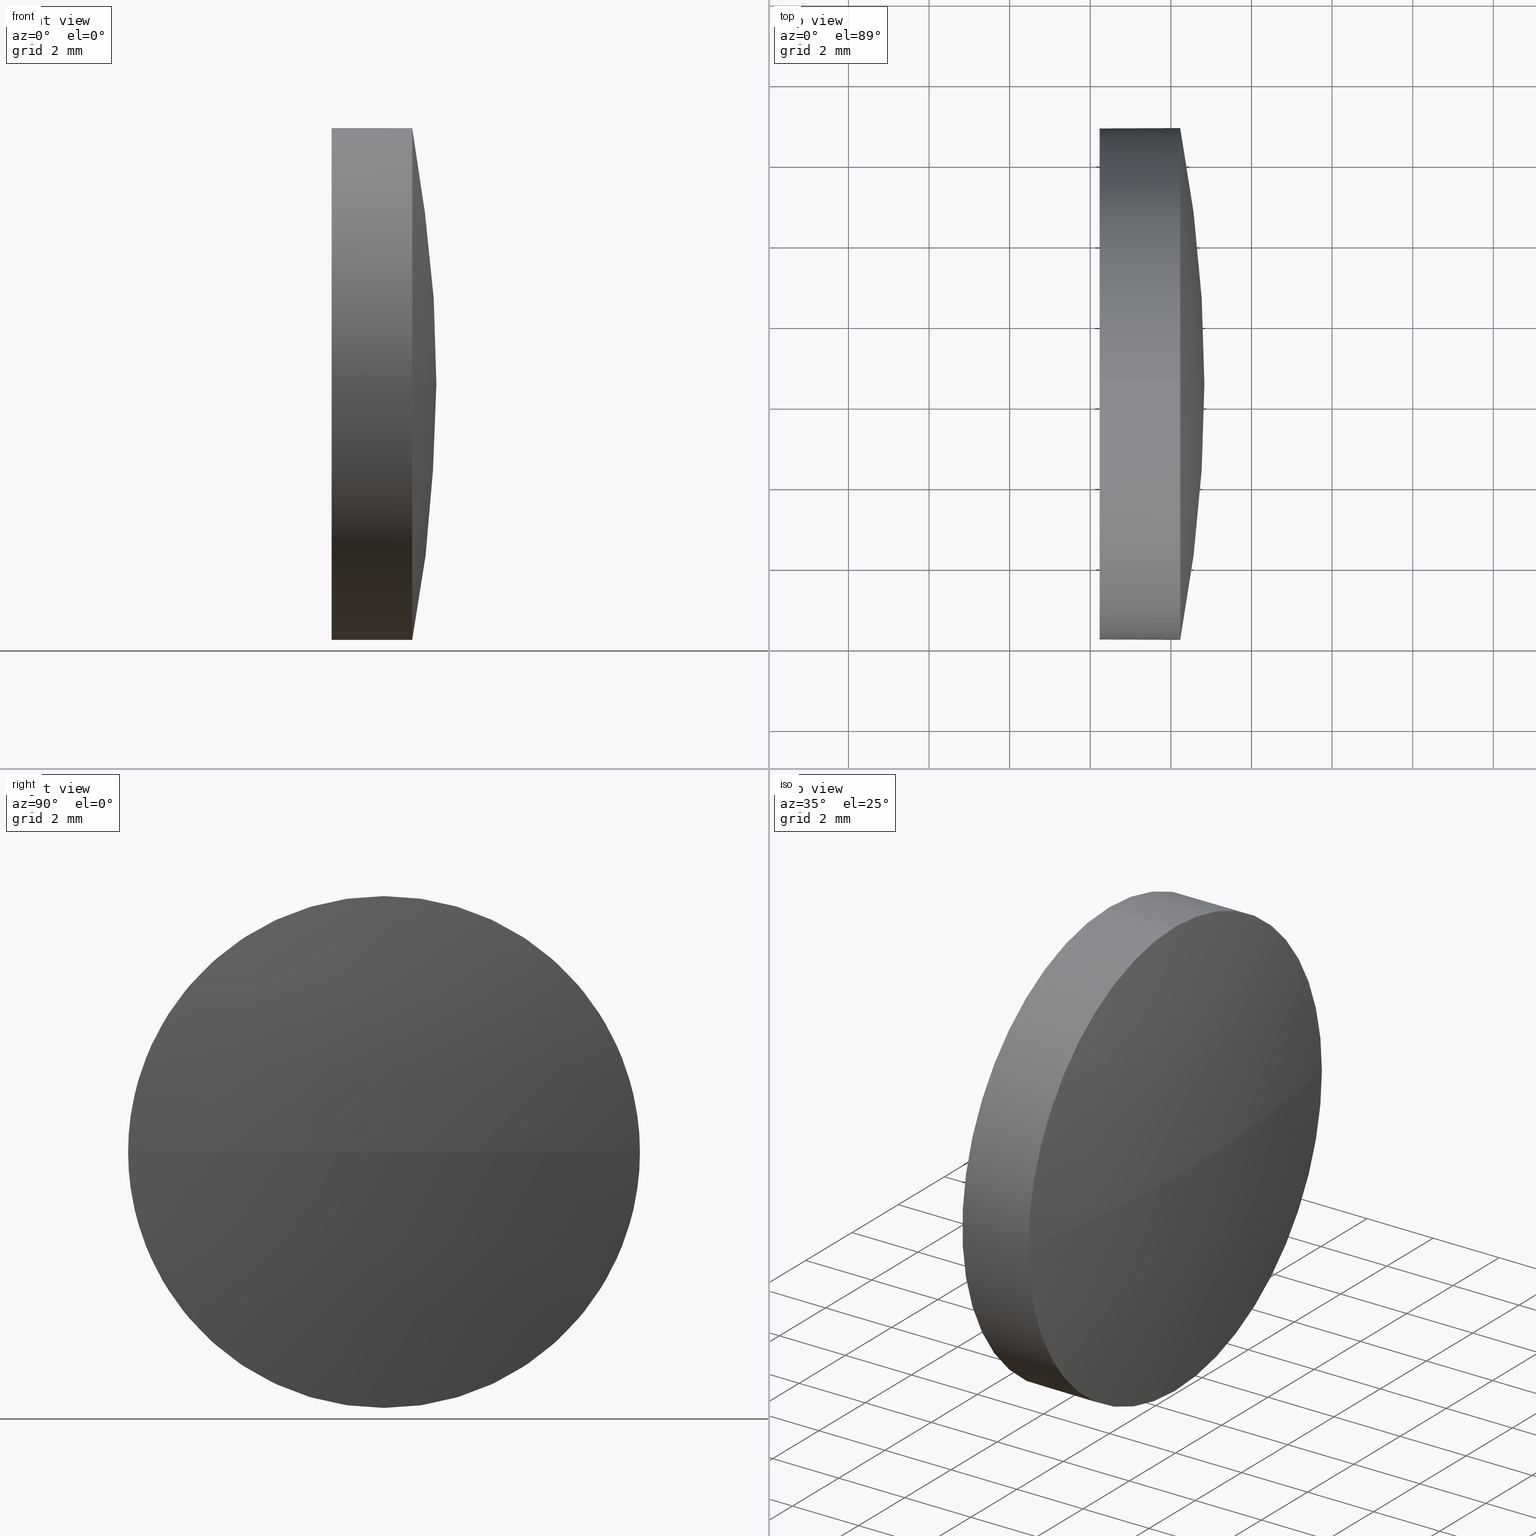
[diagram: canonical four-view strip — front | top / right | iso, engineering-drawing reading convention]
A machine part, canonical four-view strip (front | top / right | iso — engineering-drawing reading convention). The complete STEP part file that produces these views, byte-faithful:
ISO-10303-21;
HEADER;
FILE_DESCRIPTION (( 'STEP AP214' ),
    '1' );
FILE_NAME ('100488.STEP',
    '2019-06-11T08:46:52',
    ( '' ),
    ( '' ),
    'SwSTEP 2.0',
    'SolidWorks 2016',
    '' );
FILE_SCHEMA (( 'AUTOMOTIVE_DESIGN' ));
ENDSEC;

DATA;
#1 = DIRECTION ( 'NONE',  ( 1.000000000000000000, 0.0000000000000000000, 0.0000000000000000000 ) ) ;
#2 = DIRECTION ( 'NONE',  ( -1.000000000000000000, -0.0000000000000000000, -0.0000000000000000000 ) ) ;
#3 = VERTEX_POINT ( 'NONE', #39 ) ;
#4 = DIRECTION ( 'NONE',  ( 0.0000000000000000000, 0.0000000000000000000, 1.000000000000000000 ) ) ;
#5 = ORIENTED_EDGE ( 'NONE', *, *, #134, .T. ) ;
#6 = PRODUCT_DEFINITION_CONTEXT ( 'detailed design', #163, 'design' ) ;
#7 = ORIENTED_EDGE ( 'NONE', *, *, #71, .T. ) ;
#8 = COLOUR_RGB ( '',1.000000000000000000, 1.000000000000000000, 1.000000000000000000 ) ;
#9 = AXIS2_PLACEMENT_3D ( 'NONE', #16, #159, #20 ) ;
#10 = ORIENTED_EDGE ( 'NONE', *, *, #110, .T. ) ;
#11 = AXIS2_PLACEMENT_3D ( 'NONE', #63, #139, #4 ) ;
#12 = VERTEX_POINT ( 'NONE', #178 ) ;
#13 = SURFACE_STYLE_FILL_AREA ( #138 ) ;
#14 = DIRECTION ( 'NONE',  ( -1.000000000000000000, -0.0000000000000000000, -0.0000000000000000000 ) ) ;
#15 = VECTOR ( 'NONE', #160, 1000.000000000000000 ) ;
#16 = CARTESIAN_POINT ( 'NONE',  ( 336.9297911166494800, 178.5090512951935900, 0.0000000000000000000 ) ) ;
#17 = CARTESIAN_POINT ( 'NONE',  ( 365.9713433041283100, 178.5090512951935900, 6.349999999999994300 ) ) ;
#18 = FILL_AREA_STYLE_COLOUR ( '', #56 ) ;
#19 =( NAMED_UNIT ( * ) PLANE_ANGLE_UNIT ( ) SI_UNIT ( $, .RADIAN. ) );
#20 = DIRECTION ( 'NONE',  ( 0.0000000000000000000, 1.000000000000000000, 0.0000000000000000000 ) ) ;
#21 = STYLED_ITEM ( 'NONE', ( #135 ), #69 ) ;
#22 = CYLINDRICAL_SURFACE ( 'NONE', #24, 6.349999999999994300 ) ;
#23 = ADVANCED_FACE ( 'NONE', ( #53 ), #22, .T. ) ;
#24 = AXIS2_PLACEMENT_3D ( 'NONE', #123, #78, #43 ) ;
#25 = SURFACE_STYLE_FILL_AREA ( #125 ) ;
#26 = AXIS2_PLACEMENT_3D ( 'NONE', #46, #47, #166 ) ;
#27 = ADVANCED_BREP_SHAPE_REPRESENTATION ( '100488', ( #69, #100 ), #115 ) ;
#28 = SURFACE_SIDE_STYLE ('',( #13 ) ) ;
#29 = APPLICATION_PROTOCOL_DEFINITION ( 'draft international standard', 'automotive_design', 1998, #118 ) ;
#30 = DIRECTION ( 'NONE',  ( 0.0000000000000000000, 0.0000000000000000000, 1.000000000000000000 ) ) ;
#31 = AXIS2_PLACEMENT_3D ( 'NONE', #177, #186, #106 ) ;
#32 = SHAPE_DEFINITION_REPRESENTATION ( #108, #27 ) ;
#33 = ADVANCED_FACE ( 'NONE', ( #175 ), #152, .F. ) ;
#34 = PRODUCT_DEFINITION_FORMATION_WITH_SPECIFIED_SOURCE ( '�κ�', '', #89, .NOT_KNOWN. ) ;
#35 = VERTEX_POINT ( 'NONE', #181 ) ;
#36 = PRESENTATION_LAYER_ASSIGNMENT (  '', '', ( #21 ) ) ;
#37 = MECHANICAL_DESIGN_GEOMETRIC_PRESENTATION_REPRESENTATION (  '', ( #21 ), #113 ) ;
#38 = ORIENTED_EDGE ( 'NONE', *, *, #101, .F. ) ;
#39 = CARTESIAN_POINT ( 'NONE',  ( 370.2318744499828000, 178.5090512951935900, -6.349999999999994300 ) ) ;
#40 =( LENGTH_UNIT ( ) NAMED_UNIT ( * ) SI_UNIT ( .MILLI., .METRE. ) );
#41 = SURFACE_STYLE_USAGE ( .BOTH. , #28 ) ;
#42 = FILL_AREA_STYLE_COLOUR ( '', #8 ) ;
#43 = DIRECTION ( 'NONE',  ( 0.0000000000000000000, 0.0000000000000000000, 1.000000000000000000 ) ) ;
#44 = CARTESIAN_POINT ( 'NONE',  ( 336.9297911166494800, 178.5090512951935900, 0.0000000000000000000 ) ) ;
#45 = CARTESIAN_POINT ( 'NONE',  ( 368.2318744499828000, 178.5090512951935900, 0.0000000000000000000 ) ) ;
#46 = CARTESIAN_POINT ( 'NONE',  ( 336.9297911166494800, 178.5090512951935900, 0.0000000000000000000 ) ) ;
#47 = DIRECTION ( 'NONE',  ( 0.0000000000000000000, 1.224646799147353200E-016, -1.000000000000000000 ) ) ;
#48 = ORIENTED_EDGE ( 'NONE', *, *, #101, .T. ) ;
#49 = CIRCLE ( 'NONE', #127, 6.349999999999994300 ) ;
#50 = PRESENTATION_LAYER_ASSIGNMENT (  '', '', ( #133 ) ) ;
#51 = FACE_OUTER_BOUND ( 'NONE', #142, .T. ) ;
#52 = ORIENTED_EDGE ( 'NONE', *, *, #62, .F. ) ;
#53 = FACE_OUTER_BOUND ( 'NONE', #116, .T. ) ;
#54 = CIRCLE ( 'NONE', #26, 33.90208333333328000 ) ;
#55 = AXIS2_PLACEMENT_3D ( 'NONE', #140, #92, #143 ) ;
#56 = COLOUR_RGB ( '',1.000000000000000000, 1.000000000000000000, 1.000000000000000000 ) ;
#57 = CARTESIAN_POINT ( 'NONE',  ( 370.2318744499828000, 178.5090512951935900, 0.0000000000000000000 ) ) ;
#58 = CARTESIAN_POINT ( 'NONE',  ( 370.2318744499828000, 184.8590512951935500, 0.0000000000000000000 ) ) ;
#59 =( NAMED_UNIT ( * ) SI_UNIT ( $, .STERADIAN. ) SOLID_ANGLE_UNIT ( ) );
#60 = PRODUCT_DEFINITION ( 'δ֪', '', #34, #6 ) ;
#61 = DIRECTION ( 'NONE',  ( 0.0000000000000000000, 0.0000000000000000000, 1.000000000000000000 ) ) ;
#62 = EDGE_CURVE ( 'NONE', #112, #156, #148, .T. ) ;
#63 = CARTESIAN_POINT ( 'NONE',  ( 370.2318744499828000, 178.5090512951935900, 0.0000000000000000000 ) ) ;
#64 = DIRECTION ( 'NONE',  ( -0.0000000000000000000, 0.0000000000000000000, 1.000000000000000000 ) ) ;
#65 = VERTEX_POINT ( 'NONE', #121 ) ;
#66 = SURFACE_STYLE_USAGE ( .BOTH. , #79 ) ;
#67 = APPLICATION_PROTOCOL_DEFINITION ( 'draft international standard', 'automotive_design', 1998, #163 ) ;
#68 =( LENGTH_UNIT ( ) NAMED_UNIT ( * ) SI_UNIT ( .MILLI., .METRE. ) );
#69 = MANIFOLD_SOLID_BREP ( '��ת1', #80 ) ;
#70 = PRESENTATION_STYLE_ASSIGNMENT (( #41 ) ) ;
#71 = EDGE_CURVE ( 'NONE', #65, #172, #132, .T. ) ;
#72 = AXIS2_PLACEMENT_3D ( 'NONE', #111, #14, #117 ) ;
#73 =( NAMED_UNIT ( * ) SI_UNIT ( $, .STERADIAN. ) SOLID_ANGLE_UNIT ( ) );
#74 = PRODUCT_CONTEXT ( 'NONE', #118, 'mechanical' ) ;
#75 =( LENGTH_UNIT ( ) NAMED_UNIT ( * ) SI_UNIT ( .MILLI., .METRE. ) );
#76 = ORIENTED_EDGE ( 'NONE', *, *, #149, .F. ) ;
#77 = DIRECTION ( 'NONE',  ( -1.000000000000000000, -0.0000000000000000000, -0.0000000000000000000 ) ) ;
#78 = DIRECTION ( 'NONE',  ( -1.000000000000000000, -0.0000000000000000000, -0.0000000000000000000 ) ) ;
#79 = SURFACE_SIDE_STYLE ('',( #25 ) ) ;
#80 = CLOSED_SHELL ( 'NONE', ( #171, #170, #155, #23, #33 ) ) ;
#81 = AXIS2_PLACEMENT_3D ( 'NONE', #45, #179, #109 ) ;
#82 = EDGE_LOOP ( 'NONE', ( #99, #10, #52, #98 ) ) ;
#83 = EDGE_CURVE ( 'NONE', #12, #35, #54, .T. ) ;
#84 = ORIENTED_EDGE ( 'NONE', *, *, #83, .T. ) ;
#85 = AXIS2_PLACEMENT_3D ( 'NONE', #153, #97, #154 ) ;
#86 = CIRCLE ( 'NONE', #81, 6.349999999999994300 ) ;
#87 = ORIENTED_EDGE ( 'NONE', *, *, #62, .T. ) ;
#88 = ORIENTED_EDGE ( 'NONE', *, *, #110, .F. ) ;
#89 = PRODUCT ( '100488', '100488', '', ( #74 ) ) ;
#90 = ORIENTED_EDGE ( 'NONE', *, *, #134, .F. ) ;
#91 = CARTESIAN_POINT ( 'NONE',  ( 365.9713433041283100, 178.5090512951935900, -6.349999999999994300 ) ) ;
#92 = DIRECTION ( 'NONE',  ( -1.000000000000000000, -0.0000000000000000000, -0.0000000000000000000 ) ) ;
#93 = CARTESIAN_POINT ( 'NONE',  ( 0.0000000000000000000, 0.0000000000000000000, 0.0000000000000000000 ) ) ;
#94 = DIRECTION ( 'NONE',  ( 1.000000000000000000, 0.0000000000000000000, 0.0000000000000000000 ) ) ;
#95 = EDGE_CURVE ( 'NONE', #35, #112, #136, .T. ) ;
#96 = ORIENTED_EDGE ( 'NONE', *, *, #95, .T. ) ;
#97 = DIRECTION ( 'NONE',  ( -1.000000000000000000, -0.0000000000000000000, -0.0000000000000000000 ) ) ;
#98 = ORIENTED_EDGE ( 'NONE', *, *, #95, .F. ) ;
#99 = ORIENTED_EDGE ( 'NONE', *, *, #83, .F. ) ;
#100 = AXIS2_PLACEMENT_3D ( 'NONE', #93, #151, #94 ) ;
#101 = EDGE_CURVE ( 'NONE', #3, #35, #119, .T. ) ;
#102 = FACE_OUTER_BOUND ( 'NONE', #126, .T. ) ;
#103 = EDGE_CURVE ( 'NONE', #172, #65, #86, .T. ) ;
#104 = ORIENTED_EDGE ( 'NONE', *, *, #103, .T. ) ;
#105 =( GEOMETRIC_REPRESENTATION_CONTEXT ( 3 ) GLOBAL_UNCERTAINTY_ASSIGNED_CONTEXT ( ( #184 ) ) GLOBAL_UNIT_ASSIGNED_CONTEXT ( ( #75, #150, #59 ) ) REPRESENTATION_CONTEXT ( 'NONE', 'WORKASPACE' ) );
#106 = DIRECTION ( 'NONE',  ( 0.0000000000000000000, 1.000000000000000000, 0.0000000000000000000 ) ) ;
#107 = UNCERTAINTY_MEASURE_WITH_UNIT (LENGTH_MEASURE( 1.000000000000000100E-005 ), #40, 'distance_accuracy_value', 'NONE');
#108 = PRODUCT_DEFINITION_SHAPE ( 'NONE', 'NONE',  #60 ) ;
#109 = DIRECTION ( 'NONE',  ( 0.0000000000000000000, 0.0000000000000000000, 1.000000000000000000 ) ) ;
#110 = EDGE_CURVE ( 'NONE', #12, #156, #169, .T. ) ;
#111 = CARTESIAN_POINT ( 'NONE',  ( 365.9713433041283100, 178.5090512951935900, 0.0000000000000000000 ) ) ;
#112 = VERTEX_POINT ( 'NONE', #120 ) ;
#113 =( GEOMETRIC_REPRESENTATION_CONTEXT ( 3 ) GLOBAL_UNCERTAINTY_ASSIGNED_CONTEXT ( ( #145 ) ) GLOBAL_UNIT_ASSIGNED_CONTEXT ( ( #68, #144, #182 ) ) REPRESENTATION_CONTEXT ( 'NONE', 'WORKASPACE' ) );
#114 = AXIS2_PLACEMENT_3D ( 'NONE', #161, #1, #176 ) ;
#115 =( GEOMETRIC_REPRESENTATION_CONTEXT ( 3 ) GLOBAL_UNCERTAINTY_ASSIGNED_CONTEXT ( ( #107 ) ) GLOBAL_UNIT_ASSIGNED_CONTEXT ( ( #40, #19, #73 ) ) REPRESENTATION_CONTEXT ( 'NONE', 'WORKASPACE' ) );
#116 = EDGE_LOOP ( 'NONE', ( #76, #48, #96, #167, #158 ) ) ;
#117 = DIRECTION ( 'NONE',  ( 0.0000000000000000000, 0.0000000000000000000, 1.000000000000000000 ) ) ;
#118 = APPLICATION_CONTEXT ( 'automotive_design' ) ;
#119 = CIRCLE ( 'NONE', #174, 6.349999999999994300 ) ;
#120 = CARTESIAN_POINT ( 'NONE',  ( 370.2318744499828000, 178.5090512951935900, 6.349999999999994300 ) ) ;
#121 = CARTESIAN_POINT ( 'NONE',  ( 368.2318744499828000, 178.5090512951935900, 6.349999999999994300 ) ) ;
#122 = EDGE_CURVE ( 'NONE', #112, #65, #173, .T. ) ;
#123 = CARTESIAN_POINT ( 'NONE',  ( 365.9713433041283100, 178.5090512951935900, 0.0000000000000000000 ) ) ;
#124 = DIRECTION ( 'NONE',  ( -1.000000000000000000, -0.0000000000000000000, -0.0000000000000000000 ) ) ;
#125 = FILL_AREA_STYLE ('',( #18 ) ) ;
#126 = EDGE_LOOP ( 'NONE', ( #88, #84, #38, #90 ) ) ;
#127 = AXIS2_PLACEMENT_3D ( 'NONE', #57, #124, #30 ) ;
#128 = VECTOR ( 'NONE', #2, 1000.000000000000000 ) ;
#129 = SPHERICAL_SURFACE ( 'NONE', #31, 33.90208333333328000 ) ;
#130 = AXIS2_PLACEMENT_3D ( 'NONE', #44, #64, #164 ) ;
#131 = ORIENTED_EDGE ( 'NONE', *, *, #149, .T. ) ;
#132 = CIRCLE ( 'NONE', #85, 6.349999999999994300 ) ;
#133 = STYLED_ITEM ( 'NONE', ( #70 ), #27 ) ;
#134 = EDGE_CURVE ( 'NONE', #156, #3, #49, .T. ) ;
#135 = PRESENTATION_STYLE_ASSIGNMENT (( #66 ) ) ;
#136 = CIRCLE ( 'NONE', #55, 6.349999999999994300 ) ;
#137 = CARTESIAN_POINT ( 'NONE',  ( 368.2318744499828000, 178.5090512951935900, -6.349999999999994300 ) ) ;
#138 = FILL_AREA_STYLE ('',( #42 ) ) ;
#139 = DIRECTION ( 'NONE',  ( -1.000000000000000000, -0.0000000000000000000, -0.0000000000000000000 ) ) ;
#140 = CARTESIAN_POINT ( 'NONE',  ( 370.2318744499828000, 178.5090512951935900, 0.0000000000000000000 ) ) ;
#141 = CYLINDRICAL_SURFACE ( 'NONE', #72, 6.349999999999994300 ) ;
#142 = EDGE_LOOP ( 'NONE', ( #5, #131, #147, #183, #87 ) ) ;
#143 = DIRECTION ( 'NONE',  ( 0.0000000000000000000, 0.0000000000000000000, 1.000000000000000000 ) ) ;
#144 =( NAMED_UNIT ( * ) PLANE_ANGLE_UNIT ( ) SI_UNIT ( $, .RADIAN. ) );
#145 = UNCERTAINTY_MEASURE_WITH_UNIT (LENGTH_MEASURE( 1.000000000000000100E-005 ), #68, 'distance_accuracy_value', 'NONE');
#146 = PRODUCT_RELATED_PRODUCT_CATEGORY ( 'part', '', ( #89 ) ) ;
#147 = ORIENTED_EDGE ( 'NONE', *, *, #71, .F. ) ;
#148 = CIRCLE ( 'NONE', #11, 6.349999999999994300 ) ;
#149 = EDGE_CURVE ( 'NONE', #3, #172, #157, .T. ) ;
#150 =( NAMED_UNIT ( * ) PLANE_ANGLE_UNIT ( ) SI_UNIT ( $, .RADIAN. ) );
#151 = DIRECTION ( 'NONE',  ( 0.0000000000000000000, 0.0000000000000000000, 1.000000000000000000 ) ) ;
#152 = PLANE ( 'NONE',  #114 ) ;
#153 = CARTESIAN_POINT ( 'NONE',  ( 368.2318744499828000, 178.5090512951935900, 0.0000000000000000000 ) ) ;
#154 = DIRECTION ( 'NONE',  ( 0.0000000000000000000, 0.0000000000000000000, 1.000000000000000000 ) ) ;
#155 = ADVANCED_FACE ( 'NONE', ( #168 ), #165, .T. ) ;
#156 = VERTEX_POINT ( 'NONE', #58 ) ;
#157 = LINE ( 'NONE', #91, #128 ) ;
#158 = ORIENTED_EDGE ( 'NONE', *, *, #103, .F. ) ;
#159 = DIRECTION ( 'NONE',  ( -0.0000000000000000000, 0.0000000000000000000, -1.000000000000000000 ) ) ;
#160 = DIRECTION ( 'NONE',  ( -1.000000000000000000, -0.0000000000000000000, -0.0000000000000000000 ) ) ;
#161 = CARTESIAN_POINT ( 'NONE',  ( 368.2318744499828000, 178.5090512951935900, 0.0000000000000000000 ) ) ;
#162 = CARTESIAN_POINT ( 'NONE',  ( 370.2318744499828000, 178.5090512951935900, 0.0000000000000000000 ) ) ;
#163 = APPLICATION_CONTEXT ( 'automotive_design' ) ;
#164 = DIRECTION ( 'NONE',  ( 1.000000000000000000, 0.0000000000000000000, 0.0000000000000000000 ) ) ;
#165 = SPHERICAL_SURFACE ( 'NONE', #9, 33.90208333333328000 ) ;
#166 = DIRECTION ( 'NONE',  ( 0.0000000000000000000, 1.000000000000000000, 1.224646799147353200E-016 ) ) ;
#167 = ORIENTED_EDGE ( 'NONE', *, *, #122, .T. ) ;
#168 = FACE_OUTER_BOUND ( 'NONE', #82, .T. ) ;
#169 = CIRCLE ( 'NONE', #130, 33.90208333333328000 ) ;
#170 = ADVANCED_FACE ( 'NONE', ( #102 ), #129, .T. ) ;
#171 = ADVANCED_FACE ( 'NONE', ( #51 ), #141, .T. ) ;
#172 = VERTEX_POINT ( 'NONE', #137 ) ;
#173 = LINE ( 'NONE', #17, #15 ) ;
#174 = AXIS2_PLACEMENT_3D ( 'NONE', #162, #77, #61 ) ;
#175 = FACE_OUTER_BOUND ( 'NONE', #180, .T. ) ;
#176 = DIRECTION ( 'NONE',  ( 0.0000000000000000000, 0.0000000000000000000, -1.000000000000000000 ) ) ;
#177 = CARTESIAN_POINT ( 'NONE',  ( 336.9297911166494800, 178.5090512951935900, 0.0000000000000000000 ) ) ;
#178 = CARTESIAN_POINT ( 'NONE',  ( 370.8318744499827600, 178.5090512951935900, 0.0000000000000000000 ) ) ;
#179 = DIRECTION ( 'NONE',  ( -1.000000000000000000, -0.0000000000000000000, -0.0000000000000000000 ) ) ;
#180 = EDGE_LOOP ( 'NONE', ( #7, #104 ) ) ;
#181 = CARTESIAN_POINT ( 'NONE',  ( 370.2318744499828000, 172.1590512951936200, -7.776507174585653700E-016 ) ) ;
#182 =( NAMED_UNIT ( * ) SI_UNIT ( $, .STERADIAN. ) SOLID_ANGLE_UNIT ( ) );
#183 = ORIENTED_EDGE ( 'NONE', *, *, #122, .F. ) ;
#184 = UNCERTAINTY_MEASURE_WITH_UNIT (LENGTH_MEASURE( 1.000000000000000100E-005 ), #75, 'distance_accuracy_value', 'NONE');
#185 = MECHANICAL_DESIGN_GEOMETRIC_PRESENTATION_REPRESENTATION (  '', ( #133 ), #105 ) ;
#186 = DIRECTION ( 'NONE',  ( -0.0000000000000000000, 0.0000000000000000000, -1.000000000000000000 ) ) ;
ENDSEC;
END-ISO-10303-21;
